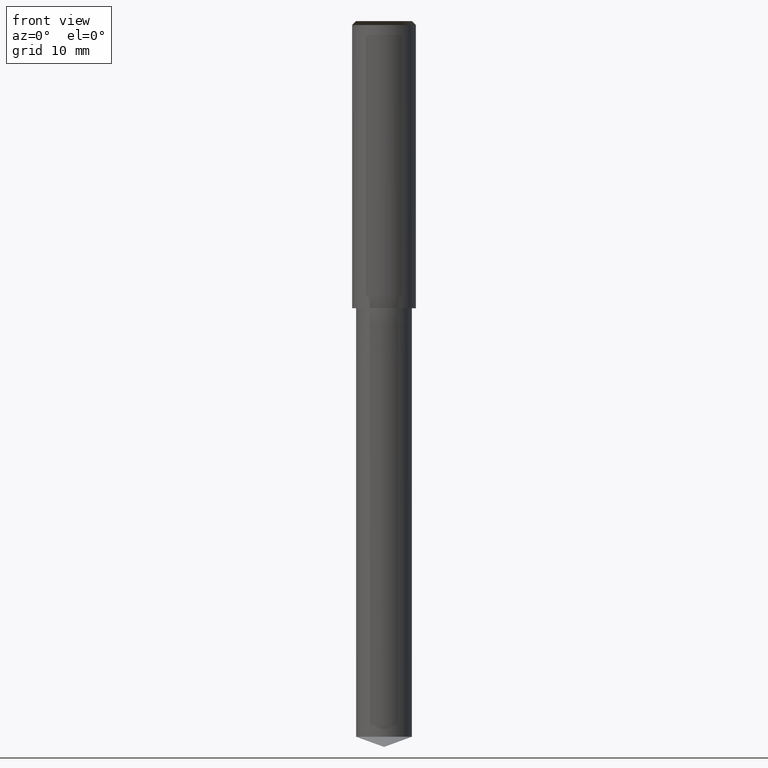
[diagram: clean part render]
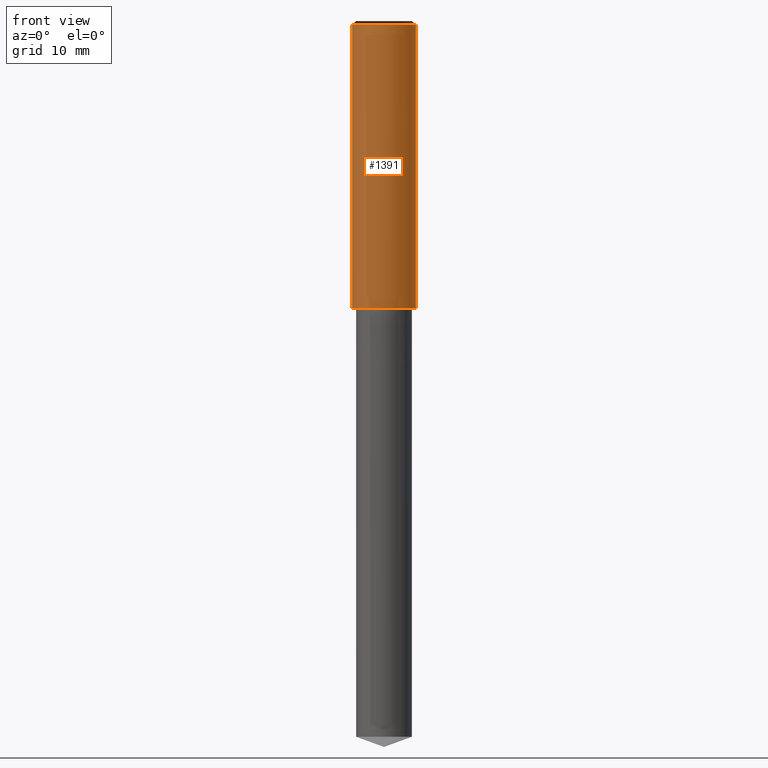
[diagram: same view with one face highlighted and labeled with its STEP entity id]
A machine part, front view. The second image highlights one B-rep face of the part: STEP entity #1391.
In plain terms, the highlighted face is a freeform B-spline surface patch.
Its self-contained STEP definition (entity closure, byte-faithful):
#1020=CARTESIAN_POINT('',(4.0,0.0,0.0));
#1024=CARTESIAN_POINT('',(-4.0,0.0,0.0));
#1025=CARTESIAN_POINT('',(4.0,0.0,35.5));
#1029=CARTESIAN_POINT('',(-4.0,0.0,35.5));
#1042=CARTESIAN_POINT('',(-4.0,-4.0,0.0));
#1043=CARTESIAN_POINT('',(0.0,-4.0,0.0));
#1044=CARTESIAN_POINT('',(4.0,-4.0,0.0));
#1045=CARTESIAN_POINT('',(-4.0,-4.0,35.5));
#1046=CARTESIAN_POINT('',(0.0,-4.0,35.5));
#1047=CARTESIAN_POINT('',(4.0,-4.0,35.5));
#1372=(
BOUNDED_SURFACE()
B_SPLINE_SURFACE(1,2,(
(#1024,#1042,#1043,#1044,#1020),
(#1029,#1045,#1046,#1047,#1025)
), .UNSPECIFIED.,.F.,.F.,.F.)
B_SPLINE_SURFACE_WITH_KNOTS((2,2),(3,2,3),(
0.0,1.0),(
0.0,0.5,1.0), .UNSPECIFIED.)
GEOMETRIC_REPRESENTATION_ITEM()
RATIONAL_B_SPLINE_SURFACE(((1.0,0.707106781187,1.0,0.707106781187,1.0),
(1.0,0.707106781187,1.0,0.707106781187,1.0)
))
REPRESENTATION_ITEM('')
SURFACE()
);
#1373=(
BOUNDED_CURVE()
B_SPLINE_CURVE(2,(#1020,#1044,#1043,#1042,#1024),.UNSPECIFIED.,.F.,.F.)
B_SPLINE_CURVE_WITH_KNOTS((3,2,3),
(0.0,0.5,1.0),.UNSPECIFIED.)
CURVE()
GEOMETRIC_REPRESENTATION_ITEM()
RATIONAL_B_SPLINE_CURVE((1.0,0.707106781187,1.0,0.707106781187,1.0))
REPRESENTATION_ITEM('')
);
#1374=(
BOUNDED_CURVE()
B_SPLINE_CURVE(1,(#1024,#1029),.UNSPECIFIED.,.F.,.F.)
B_SPLINE_CURVE_WITH_KNOTS((2,2),
(0.0,1.0),.UNSPECIFIED.)
CURVE()
GEOMETRIC_REPRESENTATION_ITEM()
RATIONAL_B_SPLINE_CURVE((1.0,1.0))
REPRESENTATION_ITEM('')
);
#1375=(
BOUNDED_CURVE()
B_SPLINE_CURVE(2,(#1029,#1045,#1046,#1047,#1025),.UNSPECIFIED.,.F.,.F.)
B_SPLINE_CURVE_WITH_KNOTS((3,2,3),
(0.0,0.5,1.0),.UNSPECIFIED.)
CURVE()
GEOMETRIC_REPRESENTATION_ITEM()
RATIONAL_B_SPLINE_CURVE((1.0,0.707106781187,1.0,0.707106781187,1.0))
REPRESENTATION_ITEM('')
);
#1376=(
BOUNDED_CURVE()
B_SPLINE_CURVE(1,(#1025,#1020),.UNSPECIFIED.,.F.,.F.)
B_SPLINE_CURVE_WITH_KNOTS((2,2),
(0.0,1.0),.UNSPECIFIED.)
CURVE()
GEOMETRIC_REPRESENTATION_ITEM()
RATIONAL_B_SPLINE_CURVE((1.0,1.0))
REPRESENTATION_ITEM('')
);
#1377=VERTEX_POINT('',#1020);
#1378=VERTEX_POINT('',#1024);
#1379=VERTEX_POINT('',#1025);
#1380=VERTEX_POINT('',#1029);
#1381=EDGE_CURVE('',#1377,#1378,#1373,.T.);
#1382=EDGE_CURVE('',#1378,#1380,#1374,.T.);
#1383=EDGE_CURVE('',#1380,#1379,#1375,.T.);
#1384=EDGE_CURVE('',#1379,#1377,#1376,.T.);
#1385=ORIENTED_EDGE('',*,*,#1381,.T.);
#1386=ORIENTED_EDGE('',*,*,#1382,.T.);
#1387=ORIENTED_EDGE('',*,*,#1383,.T.);
#1388=ORIENTED_EDGE('',*,*,#1384,.T.);
#1389=EDGE_LOOP('',(#1385,#1386,#1387,#1388));
#1390=FACE_OUTER_BOUND('',#1389,.T.);
#1391=ADVANCED_FACE('',(#1390),#1372,.T.);